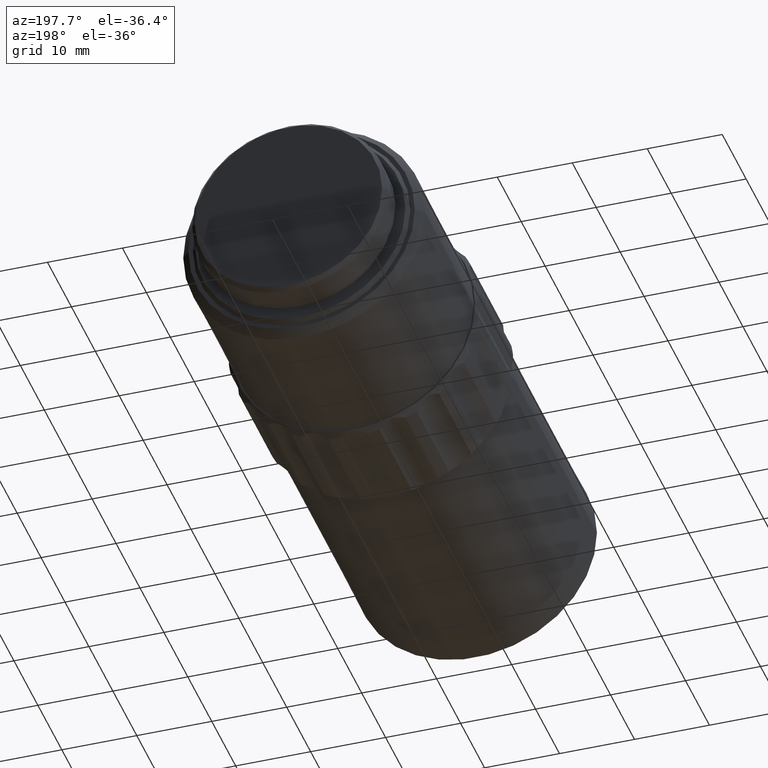
[diagram: clean part render]
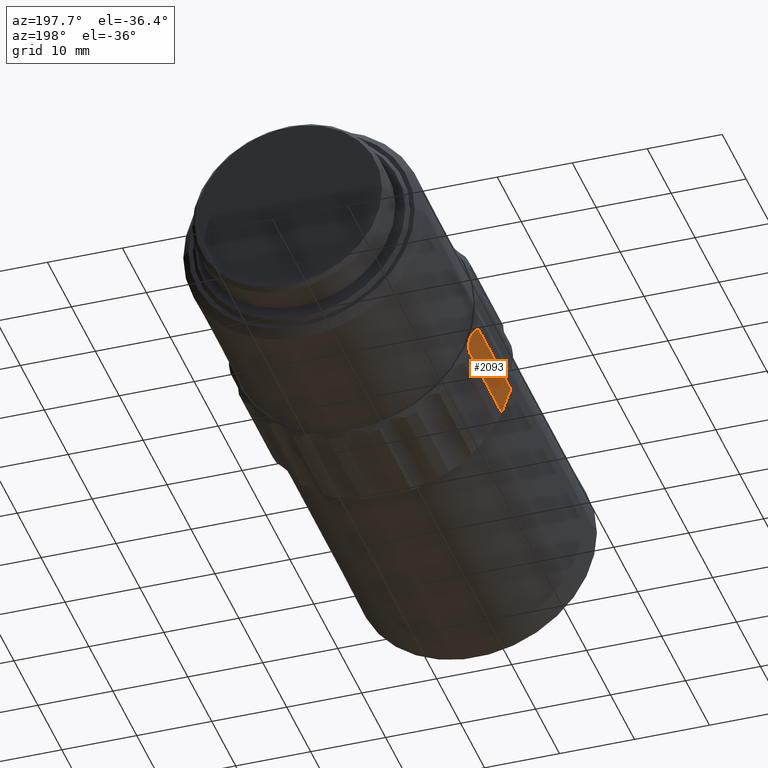
[diagram: same view with one face highlighted and labeled with its STEP entity id]
A machine part, auxiliary view. The second image highlights one B-rep face of the part: STEP entity #2093.
In plain terms, the highlighted cylindrical surface (partial cylindrical patch) has radius 4.7702 mm, axis along (0, 1, -0).
Its self-contained STEP definition (entity closure, byte-faithful):
#94 = CARTESIAN_POINT ( 'NONE',  ( 1329.360300571564949, 987.3261884124603966, -7.063553779491797968 ) ) ;
#103 = CARTESIAN_POINT ( 'NONE',  ( 1328.197024089102570, 1000.926199505876639, -3.590610928883015696 ) ) ;
#111 = CARTESIAN_POINT ( 'NONE',  ( 1324.602003172519971, 981.6262402001678993, -6.726187548033290220 ) ) ;
#152 = CARTESIAN_POINT ( 'NONE',  ( 1329.231697122623018, 986.7575281358547272, -5.529102730537641008 ) ) ;
#170 = CARTESIAN_POINT ( 'NONE',  ( 1328.562219649403232, 1001.237017090278414, -4.047816496161796174 ) ) ;
#215 = CARTESIAN_POINT ( 'NONE',  ( 1328.882265536122077, 1001.439544272382705, -4.596286993072111748 ) ) ;
#286 = EDGE_CURVE ( 'NONE', #1090, #2418, #621, .T. ) ;
#304 = DIRECTION ( 'NONE',  ( -0.9999999999545289286, 9.536353053303092670E-06, 0.000000000000000000 ) ) ;
#386 = CARTESIAN_POINT ( 'NONE',  ( 1329.360411222928406, 1000.926188411406201, -7.063822256803869770 ) ) ;
#422 = CARTESIAN_POINT ( 'NONE',  ( 1328.197024089102570, 1000.926199505876639, -3.590610928883015696 ) ) ;
#472 = EDGE_CURVE ( 'NONE', #2418, #571, #2432, .T. ) ;
#518 = CARTESIAN_POINT ( 'NONE',  ( 1329.376430616896641, 987.0153177561819575, -6.478260974581093734 ) ) ;
#533 = CARTESIAN_POINT ( 'NONE',  ( 1329.380619194500468, 987.1569154964095105, -6.776955364573026941 ) ) ;
#546 = CARTESIAN_POINT ( 'NONE',  ( 1328.197035049611713, 997.7691049278105311, -3.590658011643231617 ) ) ;
#571 = VERTEX_POINT ( 'NONE', #1928 ) ;
#621 = B_SPLINE_CURVE_WITH_KNOTS ( 'NONE', 3,
 ( #2165, #849, #643, #837, #1081, #2385, #215, #170, #1745, #422 ),
 .UNSPECIFIED., .F., .F.,
 ( 4, 2, 2, 2, 4 ),
 ( 1.447917633578038419E-06, 0.0009932411485066355503, 0.001985034379379693129, 0.002976827610252750708, 0.003968620841125808721 ),
 .UNSPECIFIED. ) ;
#623 = EDGE_LOOP ( 'NONE', ( #2710, #1372, #1860, #1130 ) ) ;
#643 = CARTESIAN_POINT ( 'NONE',  ( 1329.376578670405252, 1001.237291306366728, -6.478457365105922072 ) ) ;
#808 = CARTESIAN_POINT ( 'NONE',  ( 1328.197056973346434, 991.4549157716783157, -3.590752185879675373 ) ) ;
#818 = CARTESIAN_POINT ( 'NONE',  ( 1329.360326258748273, 990.4831818796559446, -7.063616105747190232 ) ) ;
#824 = AXIS2_PLACEMENT_3D ( 'NONE', #111, #1426, #304 ) ;
#837 = CARTESIAN_POINT ( 'NONE',  ( 1329.301253986160418, 1001.440182500354922, -5.845861910140325968 ) ) ;
#849 = CARTESIAN_POINT ( 'NONE',  ( 1329.380750096967404, 1001.095572960304139, -6.777213001191200625 ) ) ;
#1024 = CARTESIAN_POINT ( 'NONE',  ( 1329.360400025492027, 999.5498485456197386, -7.063795088301152880 ) ) ;
#1081 = CARTESIAN_POINT ( 'NONE',  ( 1329.231861687387209, 1001.495293607857207, -5.529166215287119712 ) ) ;
#1090 = VERTEX_POINT ( 'NONE', #1569 ) ;
#1130 = ORIENTED_EDGE ( 'NONE', *, *, #286, .F. ) ;
#1172 = CYLINDRICAL_SURFACE ( 'NONE', #824, 4.770187923123637930 ) ;
#1191 = B_SPLINE_CURVE_WITH_KNOTS ( 'NONE', 3,
 ( #2789, #818, #1722, #2326, #1899, #1024, #386 ),
 .UNSPECIFIED., .F., .F.,
 ( 4, 3, 4 ),
 ( 6.939544250178384050E-05, 0.009540375846247242664, 0.01366939544454771373 ),
 .UNSPECIFIED. ) ;
#1193 = CARTESIAN_POINT ( 'NONE',  ( 1328.882213950297228, 986.8132114258821730, -4.596467324283610267 ) ) ;
#1205 = CARTESIAN_POINT ( 'NONE',  ( 1328.562222746065800, 987.0155841886484041, -4.048024541126191700 ) ) ;
#1248 = CARTESIAN_POINT ( 'NONE',  ( 1328.197024089102570, 1000.926199505876639, -3.590610928883015696 ) ) ;
#1281 = CARTESIAN_POINT ( 'NONE',  ( 1329.360300571564949, 987.3261884124603966, -7.063553779491797968 ) ) ;
#1372 = ORIENTED_EDGE ( 'NONE', *, *, #2357, .T. ) ;
#1409 = CARTESIAN_POINT ( 'NONE',  ( 1328.385912502164047, 987.1569312336646362, -3.807340580776741756 ) ) ;
#1419 = CARTESIAN_POINT ( 'NONE',  ( 1328.197066530894290, 988.7024382608429960, -3.590793240074887205 ) ) ;
#1426 = DIRECTION ( 'NONE',  ( 9.536353042214721577E-06, 0.9999999999545291507, -3.717891879778666741E-15 ) ) ;
#1569 = CARTESIAN_POINT ( 'NONE',  ( 1329.360411222928406, 1000.926188411406201, -7.063822256803869770 ) ) ;
#1632 = CARTESIAN_POINT ( 'NONE',  ( 1328.197071309926287, 987.3261995054253930, -3.590813768000815198 ) ) ;
#1669 = CARTESIAN_POINT ( 'NONE',  ( 1328.197046011026259, 994.6120103497444234, -3.590705097308353189 ) ) ;
#1681 = CARTESIAN_POINT ( 'NONE',  ( 1328.197061752034188, 990.0786770162607127, -3.590772712701152614 ) ) ;
#1722 = CARTESIAN_POINT ( 'NONE',  ( 1329.360351944904323, 993.6401753468513789, -7.063678429137171477 ) ) ;
#1745 = CARTESIAN_POINT ( 'NONE',  ( 1328.385885342274833, 1001.095573246259619, -3.807132376556589204 ) ) ;
#1851 = CARTESIAN_POINT ( 'NONE',  ( 1329.301088367444208, 986.8125819067140583, -5.845734582589246386 ) ) ;
#1860 = ORIENTED_EDGE ( 'NONE', *, *, #472, .F. ) ;
#1871 = FACE_OUTER_BOUND ( 'NONE', #623, .T. ) ;
#1899 = CARTESIAN_POINT ( 'NONE',  ( 1329.360388827860561, 998.1735086798333896, -7.063767919254011929 ) ) ;
#1910 = EDGE_CURVE ( 'NONE', #1924, #1090, #1191, .T. ) ;
#1924 = VERTEX_POINT ( 'NONE', #1281 ) ;
#1928 = CARTESIAN_POINT ( 'NONE',  ( 1328.197071309926287, 987.3261995054253930, -3.590813768000815198 ) ) ;
#1931 = B_SPLINE_CURVE_WITH_KNOTS ( 'NONE', 3,
 ( #94, #533, #518, #1851, #152, #2128, #1193, #1205, #1409, #1632 ),
 .UNSPECIFIED., .F., .F.,
 ( 4, 2, 2, 2, 4 ),
 ( 8.781396689509973614E-07, 0.0009924465323215890620, 0.001984014924974227077, 0.002975583317626865308, 0.003967151710279503106 ),
 .UNSPECIFIED. ) ;
#2093 = ADVANCED_FACE ( 'NONE', ( #1871 ), #1172, .F. ) ;
#2128 = CARTESIAN_POINT ( 'NONE',  ( 1329.019276927905594, 986.7573561646131566, -4.894589912585351144 ) ) ;
#2165 = CARTESIAN_POINT ( 'NONE',  ( 1329.360411222928406, 1000.926188411406201, -7.063822256803869770 ) ) ;
#2326 = CARTESIAN_POINT ( 'NONE',  ( 1329.360377630033327, 996.7971688140469269, -7.063740749662376750 ) ) ;
#2357 = EDGE_CURVE ( 'NONE', #1924, #571, #1931, .T. ) ;
#2385 = CARTESIAN_POINT ( 'NONE',  ( 1329.019369708275690, 1001.495461484900716, -4.894455494415216101 ) ) ;
#2418 = VERTEX_POINT ( 'NONE', #1248 ) ;
#2432 = B_SPLINE_CURVE_WITH_KNOTS ( 'NONE', 3,
 ( #103, #546, #1669, #808, #1681, #1419, #2506 ),
 .UNSPECIFIED., .F., .F.,
 ( 4, 3, 4 ),
 ( 6.909211093819193688E-05, 0.009540375846247013680, 0.01366909211298405688 ),
 .UNSPECIFIED. ) ;
#2506 = CARTESIAN_POINT ( 'NONE',  ( 1328.197071309926287, 987.3261995054253930, -3.590813768000815198 ) ) ;
#2710 = ORIENTED_EDGE ( 'NONE', *, *, #1910, .F. ) ;
#2789 = CARTESIAN_POINT ( 'NONE',  ( 1329.360300571564949, 987.3261884124603966, -7.063553779491797968 ) ) ;